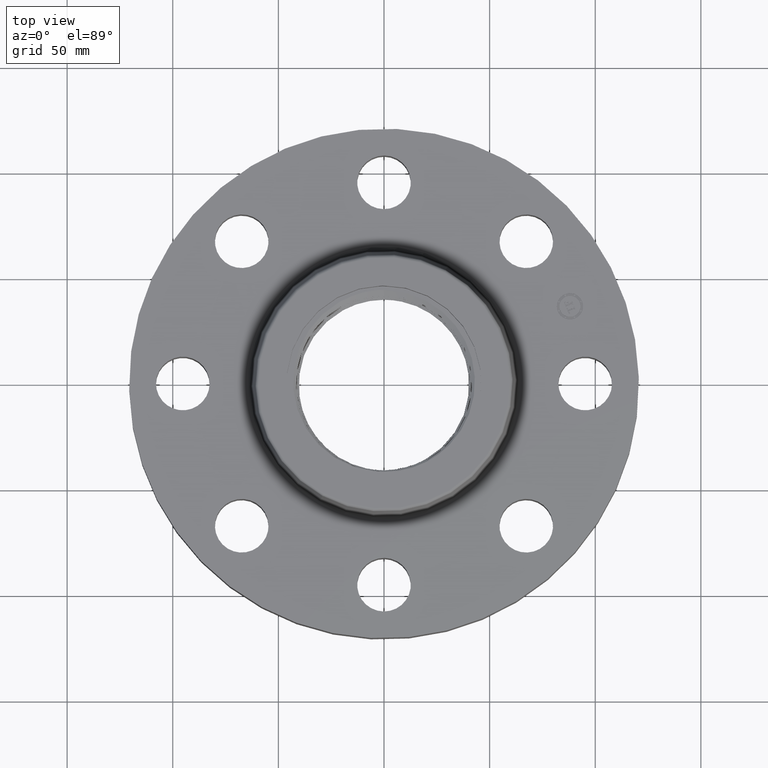
[diagram: clean part render]
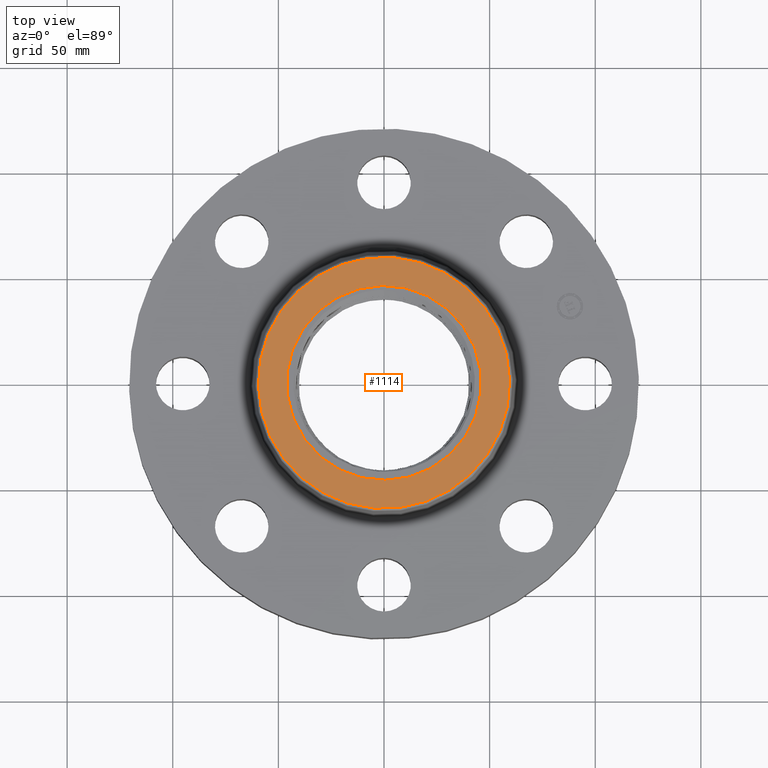
[diagram: same view with one face highlighted and labeled with its STEP entity id]
A machine part, top view. The second image highlights one B-rep face of the part: STEP entity #1114.
In plain terms, the highlighted planar face has unit normal (0, 0, -1).
Its self-contained STEP definition (entity closure, byte-faithful):
#320=AXIS2_PLACEMENT_3D('Circle Axis2P3D',#318,#319,$) ;
#346=AXIS2_PLACEMENT_3D('Circle Axis2P3D',#344,#345,$) ;
#584=AXIS2_PLACEMENT_3D('Circle Axis2P3D',#582,#583,$) ;
#603=AXIS2_PLACEMENT_3D('Circle Axis2P3D',#601,#602,$) ;
#1104=AXIS2_PLACEMENT_3D('Plane Axis2P3D',#1101,#1102,#1103) ;
#318=CARTESIAN_POINT('Axis2P3D Location',(0.,0.,2.12000000001)) ;
#322=CARTESIAN_POINT('Vertex',(-0.87015735257,1.59281234984,2.12000000001)) ;
#324=CARTESIAN_POINT('Vertex',(0.87015735257,-1.59281234984,2.12000000001)) ;
#344=CARTESIAN_POINT('Axis2P3D Location',(0.,0.,2.12000000001)) ;
#579=CARTESIAN_POINT('Vertex',(1.12201459119,2.05383393275,2.12000000001)) ;
#582=CARTESIAN_POINT('Axis2P3D Location',(0.,0.,2.12000000001)) ;
#586=CARTESIAN_POINT('Vertex',(-1.12201459119,-2.05383393275,2.12000000001)) ;
#601=CARTESIAN_POINT('Axis2P3D Location',(0.,0.,2.12000000001)) ;
#1101=CARTESIAN_POINT('Axis2P3D Location',(0.,2.3403312941,2.12000000001)) ;
#319=DIRECTION('Axis2P3D Direction',(0.,0.,0.0393700787402)) ;
#345=DIRECTION('Axis2P3D Direction',(0.,0.,0.0393700787402)) ;
#583=DIRECTION('Axis2P3D Direction',(0.,0.,-0.0393700787402)) ;
#602=DIRECTION('Axis2P3D Direction',(0.,0.,-0.0393700787402)) ;
#1102=DIRECTION('Axis2P3D Direction',(0.,0.,-0.0393700787402)) ;
#1103=DIRECTION('Axis2P3D XDirection',(0.0393700787402,0.,0.)) ;
#1107=ORIENTED_EDGE('',*,*,#588,.F.) ;
#1108=ORIENTED_EDGE('',*,*,#605,.F.) ;
#1111=ORIENTED_EDGE('',*,*,#326,.T.) ;
#1112=ORIENTED_EDGE('',*,*,#348,.T.) ;
#1113=FACE_BOUND('',#1110,.T.) ;
#1114=ADVANCED_FACE('PartBody',(#1109,#1113),#1105,.F.) ;
#321=CIRCLE('generated circle',#320,1.81500000001) ;
#347=CIRCLE('generated circle',#346,1.81500000001) ;
#585=CIRCLE('generated circle',#584,2.3403312941) ;
#604=CIRCLE('generated circle',#603,2.3403312941) ;
#326=EDGE_CURVE('',#323,#325,#321,.F.) ;
#348=EDGE_CURVE('',#325,#323,#347,.F.) ;
#588=EDGE_CURVE('',#580,#587,#585,.T.) ;
#605=EDGE_CURVE('',#587,#580,#604,.T.) ;
#1106=EDGE_LOOP('',(#1107,#1108)) ;
#1110=EDGE_LOOP('',(#1111,#1112)) ;
#1109=FACE_OUTER_BOUND('',#1106,.T.) ;
#1105=PLANE('',#1104) ;
#323=VERTEX_POINT('',#322) ;
#325=VERTEX_POINT('',#324) ;
#580=VERTEX_POINT('',#579) ;
#587=VERTEX_POINT('',#586) ;